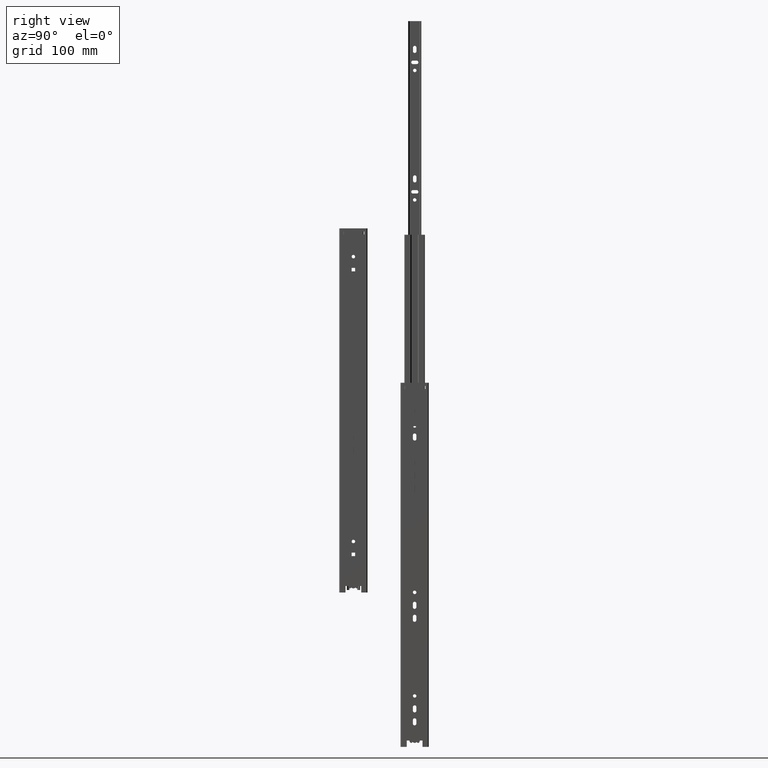
[diagram: clean part render]
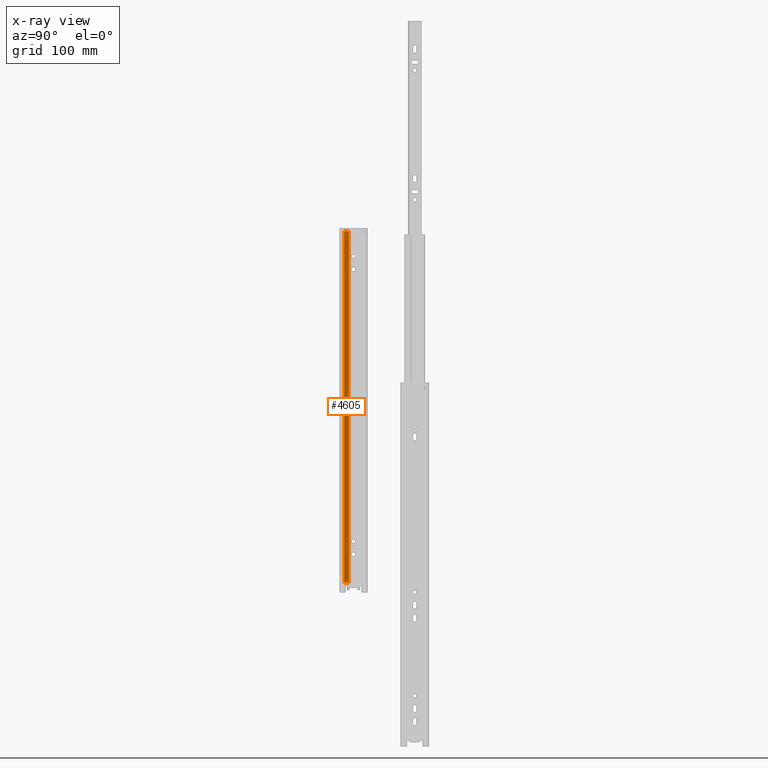
[diagram: x-ray — body ghosted, one internal face saturated and labeled with its STEP entity id]
A machine part, right view, then the same camera in x-ray: the body is ghosted and one INTERNAL B-rep face — a face not visible from any outside direction — is saturated and labeled: STEP entity #4605.
In plain terms, the highlighted planar face has unit normal (1, 0, -0).
Its self-contained STEP definition (entity closure, byte-faithful):
#629=FACE_OUTER_BOUND('',#925,.T.);
#925=EDGE_LOOP('',(#4111,#4112,#4113,#4114));
#1362=LINE('',#7614,#1826);
#1380=LINE('',#7674,#1844);
#1381=LINE('',#7677,#1845);
#1382=LINE('',#7678,#1846);
#1826=VECTOR('',#6224,5.90798761551923);
#1844=VECTOR('',#6278,434.);
#1845=VECTOR('',#6281,5.90798761551923);
#1846=VECTOR('',#6282,434.);
#2258=VERTEX_POINT('',#7611);
#2259=VERTEX_POINT('',#7613);
#2283=VERTEX_POINT('',#7672);
#2284=VERTEX_POINT('',#7676);
#2877=EDGE_CURVE('',#2258,#2259,#1362,.T.);
#2908=EDGE_CURVE('',#2258,#2283,#1380,.T.);
#2909=EDGE_CURVE('',#2284,#2283,#1381,.T.);
#2910=EDGE_CURVE('',#2259,#2284,#1382,.T.);
#4111=ORIENTED_EDGE('',*,*,#2908,.T.);
#4112=ORIENTED_EDGE('',*,*,#2909,.F.);
#4113=ORIENTED_EDGE('',*,*,#2910,.F.);
#4114=ORIENTED_EDGE('',*,*,#2877,.F.);
#4381=PLANE('',#5022);
#4605=ADVANCED_FACE('',(#629),#4381,.T.);
#5022=AXIS2_PLACEMENT_3D('',#7675,#6279,#6280);
#6224=DIRECTION('',(1.5394323092077E-12,-1.,0.));
#6278=DIRECTION('',(0.,0.,1.));
#6279=DIRECTION('center_axis',(1.,1.5394323092077E-12,0.));
#6280=DIRECTION('ref_axis',(-1.53942969483012E-12,1.,0.));
#6281=DIRECTION('',(-1.5394323092077E-12,1.,0.));
#6282=DIRECTION('',(0.,0.,1.));
#7611=CARTESIAN_POINT('',(-0.448703566614632,21.1073416130827,-217.));
#7613=CARTESIAN_POINT('',(-0.448703566605537,15.1993539975635,-217.));
#7614=CARTESIAN_POINT('',(-0.448703566605537,15.1993539975635,-217.));
#7672=CARTESIAN_POINT('',(-0.448703566614632,21.1073416130827,217.));
#7674=CARTESIAN_POINT('',(-0.448703566614632,21.1073416130827,0.));
#7675=CARTESIAN_POINT('Origin',(-0.448703566605537,15.1993539975635,0.));
#7676=CARTESIAN_POINT('',(-0.448703566605537,15.1993539975635,217.));
#7677=CARTESIAN_POINT('',(-0.448703566605537,15.1993539975635,217.));
#7678=CARTESIAN_POINT('',(-0.448703566605537,15.1993539975635,0.));